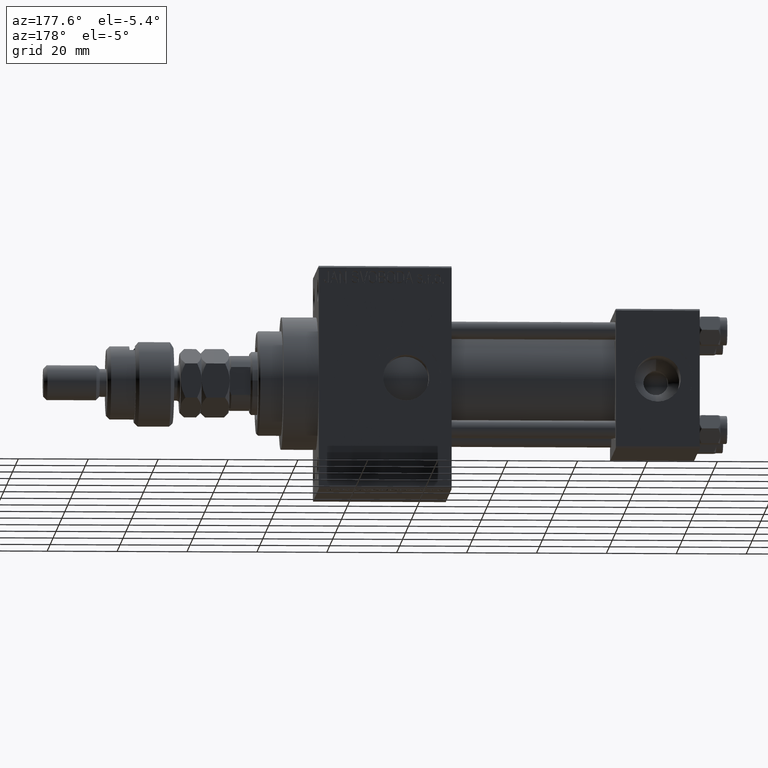
[diagram: clean part render]
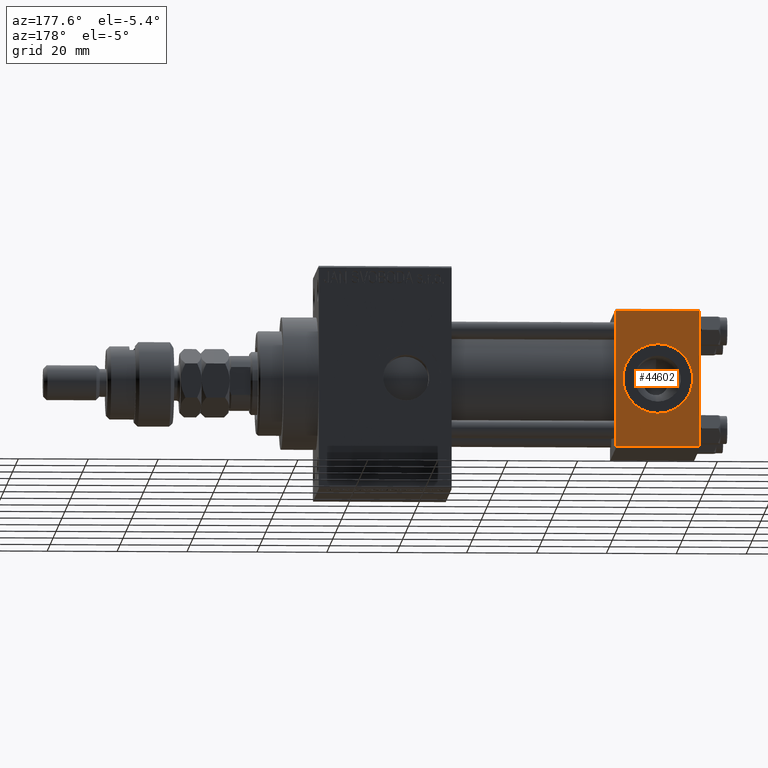
[diagram: same view with one face highlighted and labeled with its STEP entity id]
A machine part, auxiliary view. The second image highlights one B-rep face of the part: STEP entity #44602.
In plain terms, the highlighted planar face has unit normal (0, 1, 0).
Its self-contained STEP definition (entity closure, byte-faithful):
#1151 = ORIENTED_EDGE ( 'NONE', *, *, #6820, .F. ) ;
#2177 = FACE_BOUND ( 'NONE', #36317, .T. ) ;
#2925 = DIRECTION ( 'NONE',  ( 0.000000000000000000, -0.000000000000000000, 1.000000000000000000 ) ) ;
#3207 = DIRECTION ( 'NONE',  ( 0.000000000000000000, 1.000000000000000000, 0.000000000000000000 ) ) ;
#3256 = ORIENTED_EDGE ( 'NONE', *, *, #9031, .T. ) ;
#3729 = EDGE_CURVE ( 'NONE', #25472, #25183, #44148, .T. ) ;
#4657 = CARTESIAN_POINT ( 'NONE',  ( 24.00000000000000000, 20.00000000000000000, 19.49999999999999289 ) ) ;
#5153 = DIRECTION ( 'NONE',  ( 1.000000000000000000, 0.000000000000000000, 0.000000000000000000 ) ) ;
#6820 = EDGE_CURVE ( 'NONE', #24674, #25752, #42102, .T. ) ;
#7228 = LINE ( 'NONE', #26153, #22491 ) ;
#9031 = EDGE_CURVE ( 'NONE', #44499, #25752, #7228, .T. ) ;
#9197 = VECTOR ( 'NONE', #5153, 1000.000000000000000 ) ;
#9254 = EDGE_CURVE ( 'NONE', #25183, #25472, #49023, .T. ) ;
#9991 = FACE_OUTER_BOUND ( 'NONE', #22323, .T. ) ;
#10488 = CARTESIAN_POINT ( 'NONE',  ( 12.00000000000000000, 20.00000000000000000, 10.00000000000000000 ) ) ;
#13168 = VECTOR ( 'NONE', #31322, 1000.000000000000000 ) ;
#13635 = AXIS2_PLACEMENT_3D ( 'NONE', #36424, #37165, #43998 ) ;
#13747 = CARTESIAN_POINT ( 'NONE',  ( 24.00000000000000000, 20.00000000000000000, 19.49999999999999289 ) ) ;
#15500 = ORIENTED_EDGE ( 'NONE', *, *, #9254, .F. ) ;
#19970 = VECTOR ( 'NONE', #42349, 1000.000000000000000 ) ;
#22323 = EDGE_LOOP ( 'NONE', ( #25130, #3256, #1151, #31219 ) ) ;
#22491 = VECTOR ( 'NONE', #37719, 1000.000000000000000 ) ;
#22887 = CARTESIAN_POINT ( 'NONE',  ( 12.00000000000000178, 20.00000000000000000, -10.00000000000000000 ) ) ;
#23009 = LINE ( 'NONE', #41913, #13168 ) ;
#23390 = CARTESIAN_POINT ( 'NONE',  ( 24.00000000000000000, 20.00000000000000000, -19.50000000000002132 ) ) ;
#24674 = VERTEX_POINT ( 'NONE', #33560 ) ;
#25130 = ORIENTED_EDGE ( 'NONE', *, *, #42783, .T. ) ;
#25183 = VERTEX_POINT ( 'NONE', #22887 ) ;
#25472 = VERTEX_POINT ( 'NONE', #10488 ) ;
#25520 = CARTESIAN_POINT ( 'NONE',  ( 0.000000000000000000, 20.00000000000000000, -19.50000000000002132 ) ) ;
#25752 = VERTEX_POINT ( 'NONE', #25520 ) ;
#25882 = CARTESIAN_POINT ( 'NONE',  ( 24.00000000000000000, 20.00000000000000000, 20.00000000000000000 ) ) ;
#26153 = CARTESIAN_POINT ( 'NONE',  ( 24.00000000000000000, 20.00000000000000000, -19.50000000000002132 ) ) ;
#30192 = CARTESIAN_POINT ( 'NONE',  ( 12.00000000000000000, 20.00000000000000000, 0.000000000000000000 ) ) ;
#31219 = ORIENTED_EDGE ( 'NONE', *, *, #48152, .T. ) ;
#31322 = DIRECTION ( 'NONE',  ( 0.000000000000000000, 0.000000000000000000, -1.000000000000000000 ) ) ;
#32304 = VERTEX_POINT ( 'NONE', #13747 ) ;
#32576 = AXIS2_PLACEMENT_3D ( 'NONE', #25882, #45269, #2925 ) ;
#33236 = DIRECTION ( 'NONE',  ( 0.000000000000000000, 0.000000000000000000, 1.000000000000000000 ) ) ;
#33560 = CARTESIAN_POINT ( 'NONE',  ( 0.000000000000000000, 20.00000000000000000, 19.49999999999999289 ) ) ;
#34801 = ORIENTED_EDGE ( 'NONE', *, *, #3729, .F. ) ;
#36317 = EDGE_LOOP ( 'NONE', ( #34801, #15500 ) ) ;
#36424 = CARTESIAN_POINT ( 'NONE',  ( 12.00000000000000000, 20.00000000000000000, 0.000000000000000000 ) ) ;
#37165 = DIRECTION ( 'NONE',  ( 0.000000000000000000, 1.000000000000000000, 0.000000000000000000 ) ) ;
#37719 = DIRECTION ( 'NONE',  ( -1.000000000000000000, 0.000000000000000000, 0.000000000000000000 ) ) ;
#40124 = AXIS2_PLACEMENT_3D ( 'NONE', #30192, #3207, #33236 ) ;
#41856 = CARTESIAN_POINT ( 'NONE',  ( 0.000000000000000000, 20.00000000000000000, 20.00000000000000000 ) ) ;
#41913 = CARTESIAN_POINT ( 'NONE',  ( 24.00000000000000000, 20.00000000000000000, 20.00000000000000000 ) ) ;
#42102 = LINE ( 'NONE', #41856, #19970 ) ;
#42349 = DIRECTION ( 'NONE',  ( 0.000000000000000000, 0.000000000000000000, -1.000000000000000000 ) ) ;
#42783 = EDGE_CURVE ( 'NONE', #32304, #44499, #23009, .T. ) ;
#43998 = DIRECTION ( 'NONE',  ( 0.000000000000000000, 0.000000000000000000, 1.000000000000000000 ) ) ;
#44148 = CIRCLE ( 'NONE', #40124, 10.00000000000000000 ) ;
#44499 = VERTEX_POINT ( 'NONE', #23390 ) ;
#44602 = ADVANCED_FACE ( 'NONE', ( #2177, #9991 ), #48801, .T. ) ;
#45269 = DIRECTION ( 'NONE',  ( -0.000000000000000000, 1.000000000000000000, 0.000000000000000000 ) ) ;
#47000 = LINE ( 'NONE', #4657, #9197 ) ;
#48152 = EDGE_CURVE ( 'NONE', #24674, #32304, #47000, .T. ) ;
#48801 = PLANE ( 'NONE',  #32576 ) ;
#49023 = CIRCLE ( 'NONE', #13635, 10.00000000000000000 ) ;